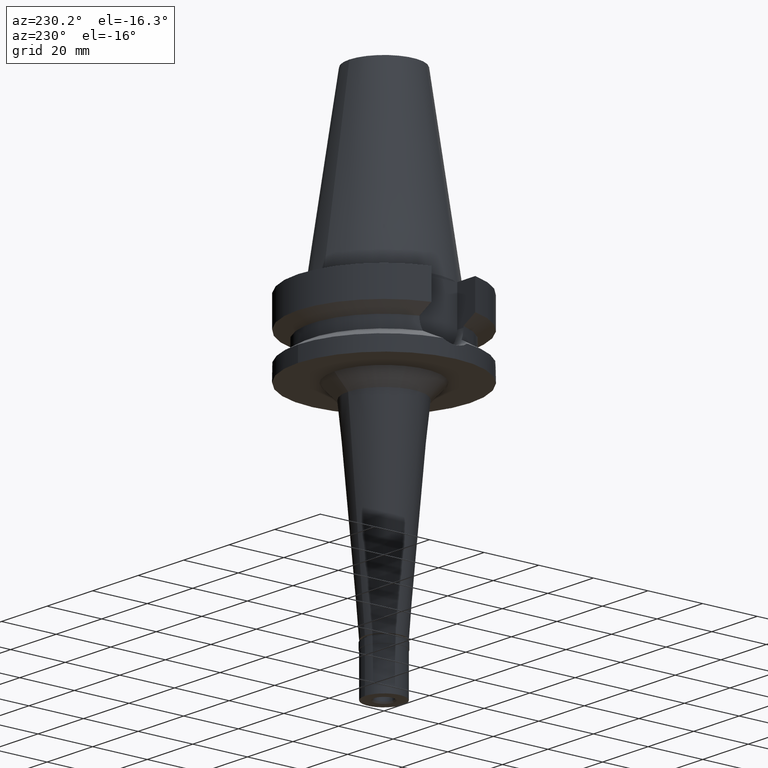
[diagram: clean part render]
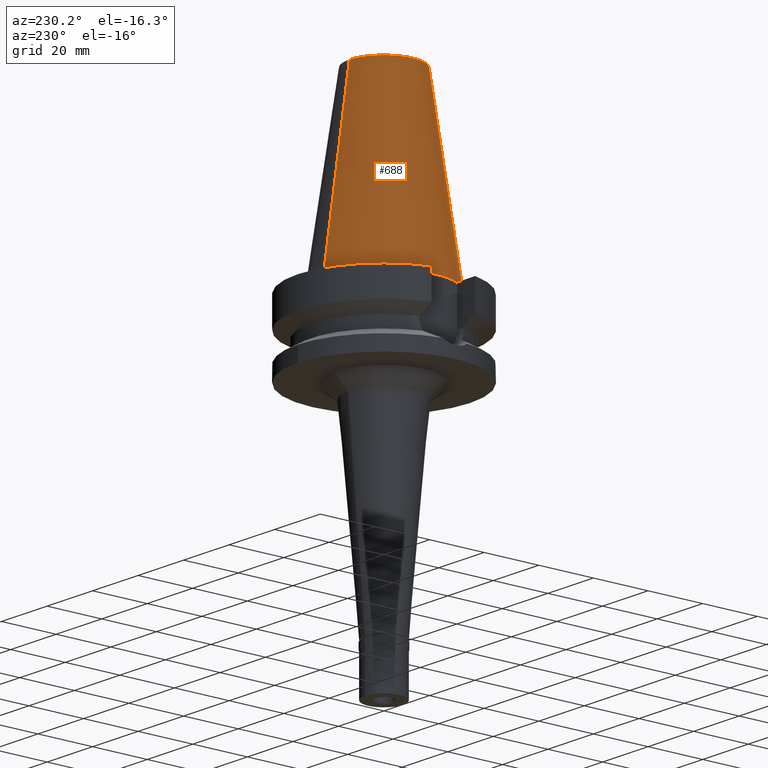
[diagram: same view with one face highlighted and labeled with its STEP entity id]
A machine part, auxiliary view. The second image highlights one B-rep face of the part: STEP entity #688.
In plain terms, the highlighted conical surface has half-angle 8.297 deg.
Its self-contained STEP definition (entity closure, byte-faithful):
#33 = CONICAL_SURFACE ( 'NONE', #1226, 17.45633449714999941, 0.1448099680379422438 ) ;
#166 = CARTESIAN_POINT ( 'NONE',  ( 0.0000000000000000000, 12.68766899429999917, 65.40000000000000568 ) ) ;
#193 = CARTESIAN_POINT ( 'NONE',  ( 0.0000000000000000000, 12.68766899429999917, 65.40000000000000568 ) ) ;
#265 = CARTESIAN_POINT ( 'NONE',  ( 0.0000000000000000000, -12.68766899429999917, 65.40000000000000568 ) ) ;
#518 = VERTEX_POINT ( 'NONE', #193 ) ;
#688 = ADVANCED_FACE ( 'NONE', ( #896 ), #33, .T. ) ;
#708 = ORIENTED_EDGE ( 'NONE', *, *, #1286, .T. ) ;
#887 = CARTESIAN_POINT ( 'NONE',  ( 0.0000000000000000000, -12.68766899429999917, 65.40000000000000568 ) ) ;
#896 = FACE_OUTER_BOUND ( 'NONE', #1928, .T. ) ;
#1018 = AXIS2_PLACEMENT_3D ( 'NONE', #1450, #1699, #2622 ) ;
#1038 = VECTOR ( 'NONE', #1111, 1000.000000000000114 ) ;
#1053 = DIRECTION ( 'NONE',  ( 0.0000000000000000000, -0.1443043893539925626, -0.9895333461855498891 ) ) ;
#1080 = DIRECTION ( 'NONE',  ( 0.0000000000000000000, 0.0000000000000000000, -1.000000000000000000 ) ) ;
#1111 = DIRECTION ( 'NONE',  ( 0.0000000000000000000, 0.1443043893539925626, -0.9895333461855498891 ) ) ;
#1112 = ORIENTED_EDGE ( 'NONE', *, *, #2443, .T. ) ;
#1172 = CIRCLE ( 'NONE', #1941, 12.68766899429999917 ) ;
#1226 = AXIS2_PLACEMENT_3D ( 'NONE', #2217, #1080, #1295 ) ;
#1278 = DIRECTION ( 'NONE',  ( 0.0000000000000000000, -1.000000000000000000, 0.0000000000000000000 ) ) ;
#1286 = EDGE_CURVE ( 'NONE', #518, #2886, #2920, .T. ) ;
#1295 = DIRECTION ( 'NONE',  ( 0.0000000000000000000, -1.000000000000000000, 0.0000000000000000000 ) ) ;
#1409 = CARTESIAN_POINT ( 'NONE',  ( 0.0000000000000000000, -22.22500000000000142, 1.065814103639999827E-13 ) ) ;
#1450 = CARTESIAN_POINT ( 'NONE',  ( 0.0000000000000000000, 1.625106302469000024E-14, 2.842170943039999687E-14 ) ) ;
#1492 = DIRECTION ( 'NONE',  ( 0.0000000000000000000, 0.0000000000000000000, -1.000000000000000000 ) ) ;
#1699 = DIRECTION ( 'NONE',  ( 0.0000000000000000000, 0.0000000000000000000, -1.000000000000000000 ) ) ;
#1795 = EDGE_CURVE ( 'NONE', #2133, #2886, #2316, .T. ) ;
#1889 = VECTOR ( 'NONE', #1053, 1000.000000000000114 ) ;
#1928 = EDGE_LOOP ( 'NONE', ( #2210, #2297, #1112, #708 ) ) ;
#1941 = AXIS2_PLACEMENT_3D ( 'NONE', #2645, #1492, #1278 ) ;
#2108 = EDGE_CURVE ( 'NONE', #2614, #2133, #2940, .T. ) ;
#2133 = VERTEX_POINT ( 'NONE', #1409 ) ;
#2179 = CARTESIAN_POINT ( 'NONE',  ( 0.0000000000000000000, 22.22500000000000142, 1.065814103639999827E-13 ) ) ;
#2210 = ORIENTED_EDGE ( 'NONE', *, *, #1795, .F. ) ;
#2217 = CARTESIAN_POINT ( 'NONE',  ( 0.0000000000000000000, 1.625106302469000024E-14, 32.70000000000000284 ) ) ;
#2297 = ORIENTED_EDGE ( 'NONE', *, *, #2108, .F. ) ;
#2316 = CIRCLE ( 'NONE', #1018, 22.22500000000000142 ) ;
#2443 = EDGE_CURVE ( 'NONE', #2614, #518, #1172, .T. ) ;
#2614 = VERTEX_POINT ( 'NONE', #265 ) ;
#2622 = DIRECTION ( 'NONE',  ( 0.0000000000000000000, -1.000000000000000000, 0.0000000000000000000 ) ) ;
#2645 = CARTESIAN_POINT ( 'NONE',  ( 0.0000000000000000000, 1.625106302469000024E-14, 65.40000000000000568 ) ) ;
#2886 = VERTEX_POINT ( 'NONE', #2179 ) ;
#2920 = LINE ( 'NONE', #166, #1038 ) ;
#2940 = LINE ( 'NONE', #887, #1889 ) ;